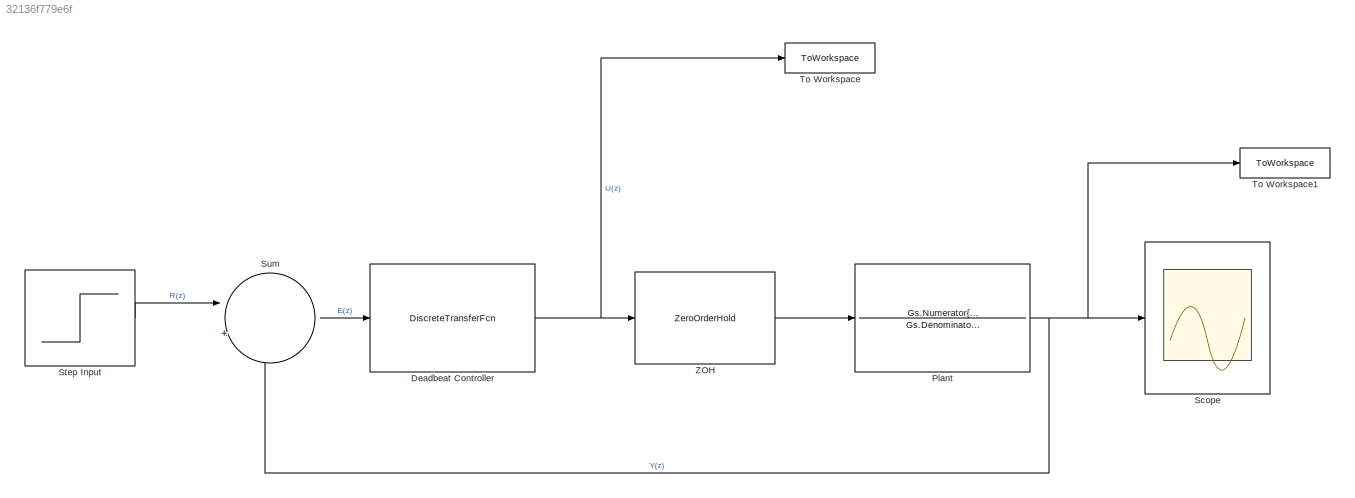
MODEL slx_32136f779e6f
KIND model
CONFIG AbsTol = auto
CONFIG EnableMultiTasking = off
CONFIG FixedStep = auto
CONFIG MaxStep = auto
CONFIG MinStep = auto
CONFIG RelTol = 1e-3
CONFIG SampleTimeConstraint = Unconstrained
CONFIG SolverName = ode45
CONFIG StartTime = 0.0
CONFIG StopTime = 1
BLOCK [DiscreteTransferFcn] Deadbeat Controller
  Denominator = Gd_RL.Denominator{:}
  InputPortMap = u0
  Numerator = Gd_RL.Numerator{:}
  Ports = [1, 1]
  SampleTime = Ts
BLOCK [TransferFcn] Plant
  Denominator = Gs.Denominator{:}
  Numerator = Gs.Numerator{:}
BLOCK [Scope] Scope
  Floating = off
  NumInputPorts = 1
  Ports = [1]
  ScopeSpecificationString = Simulink.scopes.TimeScopeBlockCfg('CurrentConfiguration', extmgr.ConfigurationSet(extmgr.Configuration('Core','General UI',true),extmgr.Configuration('Core','Source UI',true),extmgr.Configuration('Sources','WiredSimulink',true),extmgr.Configuration('Visuals','Time Domain',true,'SerializedDisplays',{struct('MinYLimReal','-0.00163','MaxYLimReal','0.01468','YLabelReal','','MinYLimMag','0.00000','MaxY...<+1383ch>
BLOCK [Step] Step Input
  After = 0.01
  SampleTime = 0
  Time = 0
BLOCK [Sum] Sum
  Inputs = |+-
  Ports = [2, 1]
BLOCK [ToWorkspace] To Workspace
  FixptAsFi = on
  MaxDataPoints = inf
  Ports = [1]
  SampleTime = -1
  SaveFormat = Timeseries
  VariableName = U_RL
BLOCK [ToWorkspace] To Workspace1
  FixptAsFi = on
  MaxDataPoints = inf
  Ports = [1]
  SampleTime = -1
  SaveFormat = Timeseries
  VariableName = Y_RL
BLOCK [ZeroOrderHold] ZOH
  SampleTime = Ts
NET Deadbeat Controller:1 -> To Workspace:1, ZOH:1
NET Plant:1 -> Scope:1, Sum:2, To Workspace1:1
LINE Step Input:1 -> Sum:1
LINE Sum:1 -> Deadbeat Controller:1
LINE ZOH:1 -> Plant:1
note: NET lines group one-source signal fan-out (src -> all destinations, sorted); 1:1 wires keep LINE
